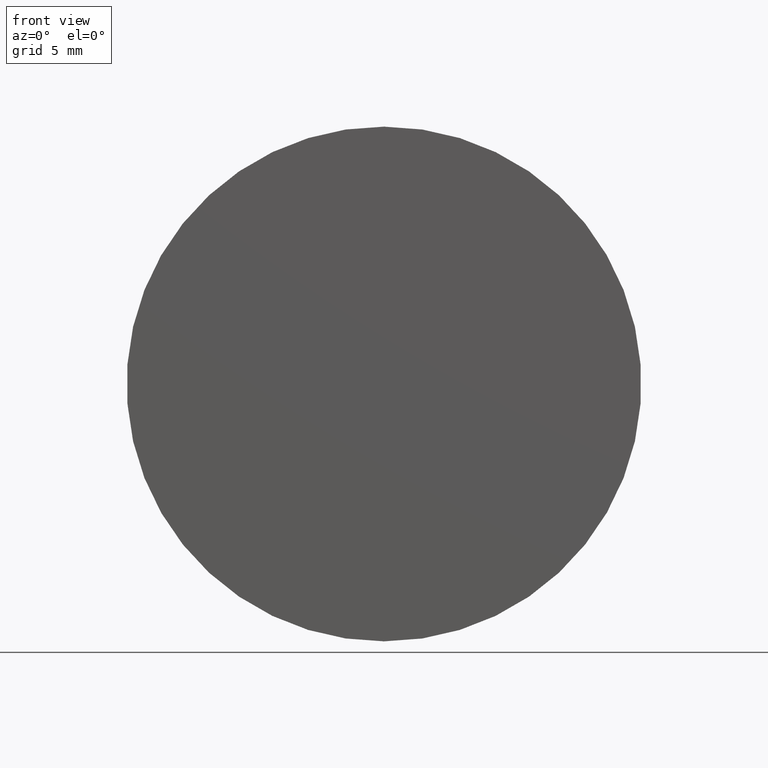
[diagram: clean part render]
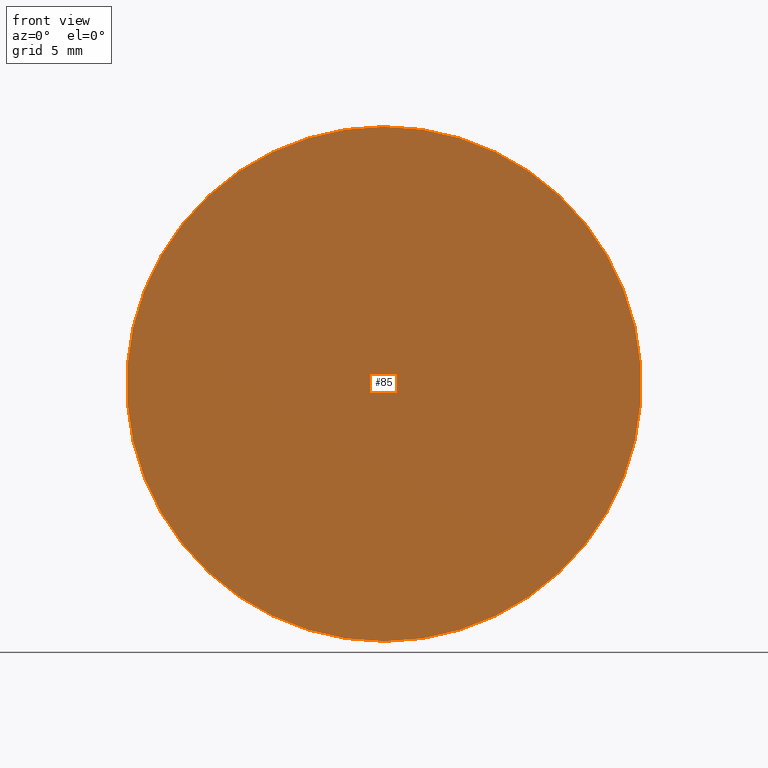
[diagram: same view with one face highlighted and labeled with its STEP entity id]
A machine part, front view. The second image highlights one B-rep face of the part: STEP entity #85.
In plain terms, the highlighted planar face has unit normal (0, -1, 0).
Its self-contained STEP definition (entity closure, byte-faithful):
#4 = DIRECTION ( 'NONE',  ( 0.000000000000000000, -0.000000000000000000, -1.000000000000000000 ) ) ;
#5 = CARTESIAN_POINT ( 'NONE',  ( 0.000000000000000000, -1.734723475976807094E-15, 0.000000000000000000 ) ) ;
#15 = ORIENTED_EDGE ( 'NONE', *, *, #63, .F. ) ;
#18 = VERTEX_POINT ( 'NONE', #21 ) ;
#21 = CARTESIAN_POINT ( 'NONE',  ( 0.000000000000000000, -1.734723475976807094E-15, 15.00000000000000000 ) ) ;
#23 = PLANE ( 'NONE',  #78 ) ;
#29 = DIRECTION ( 'NONE',  ( -0.000000000000000000, 1.000000000000000000, -0.000000000000000000 ) ) ;
#37 = ORIENTED_EDGE ( 'NONE', *, *, #135, .F. ) ;
#63 = EDGE_CURVE ( 'NONE', #18, #141, #149, .T. ) ;
#78 = AXIS2_PLACEMENT_3D ( 'NONE', #191, #146, #4 ) ;
#83 = CARTESIAN_POINT ( 'NONE',  ( 0.000000000000000000, -1.734723475976807094E-15, 0.000000000000000000 ) ) ;
#85 = ADVANCED_FACE ( 'NONE', ( #173 ), #23, .T. ) ;
#89 = AXIS2_PLACEMENT_3D ( 'NONE', #5, #116, #178 ) ;
#93 = DIRECTION ( 'NONE',  ( 0.000000000000000000, 0.000000000000000000, 1.000000000000000000 ) ) ;
#113 = EDGE_LOOP ( 'NONE', ( #15, #37 ) ) ;
#116 = DIRECTION ( 'NONE',  ( -0.000000000000000000, 1.000000000000000000, -0.000000000000000000 ) ) ;
#135 = EDGE_CURVE ( 'NONE', #141, #18, #160, .T. ) ;
#141 = VERTEX_POINT ( 'NONE', #158 ) ;
#146 = DIRECTION ( 'NONE',  ( 0.000000000000000000, -1.000000000000000000, 0.000000000000000000 ) ) ;
#149 = CIRCLE ( 'NONE', #190, 15.00000000000000000 ) ;
#158 = CARTESIAN_POINT ( 'NONE',  ( 1.836970198721029589E-15, -1.734723475976807094E-15, -15.00000000000000000 ) ) ;
#160 = CIRCLE ( 'NONE', #89, 15.00000000000000000 ) ;
#173 = FACE_OUTER_BOUND ( 'NONE', #113, .T. ) ;
#178 = DIRECTION ( 'NONE',  ( 0.000000000000000000, 0.000000000000000000, 1.000000000000000000 ) ) ;
#190 = AXIS2_PLACEMENT_3D ( 'NONE', #83, #29, #93 ) ;
#191 = CARTESIAN_POINT ( 'NONE',  ( 0.000000000000000000, -9.184850993605147944E-16, 0.000000000000000000 ) ) ;